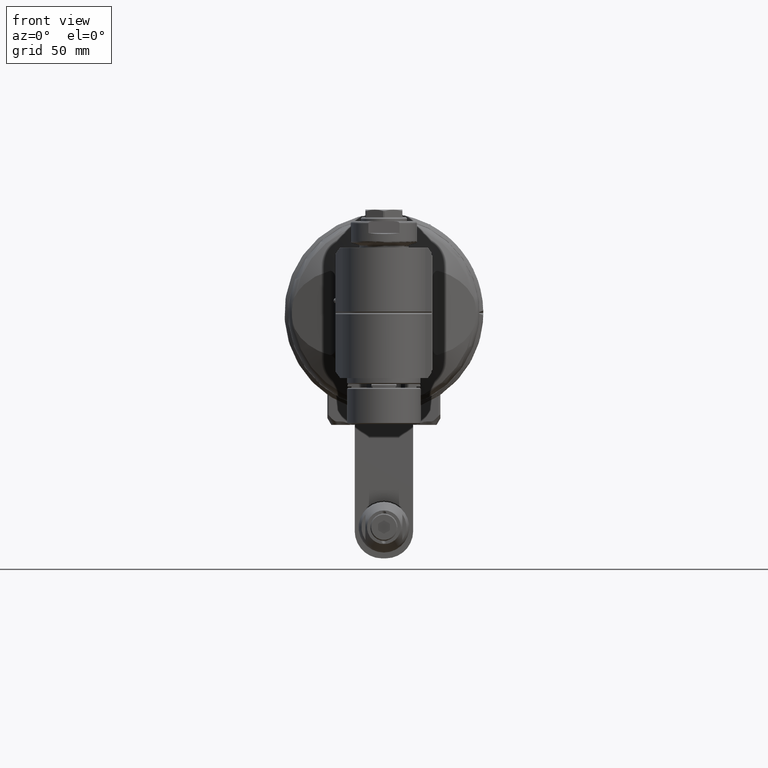
[diagram: clean part render]
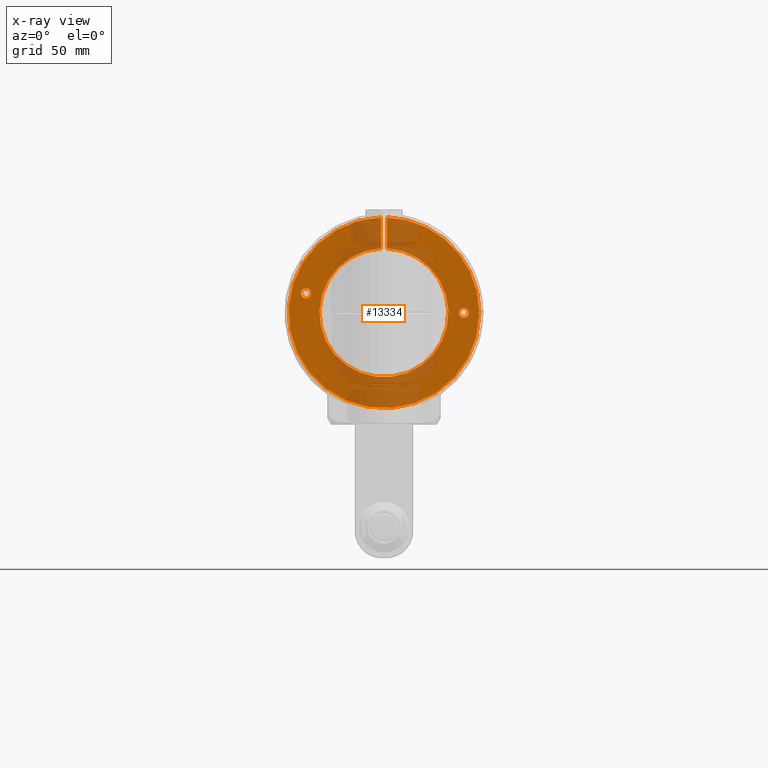
[diagram: x-ray — body ghosted, one internal face saturated and labeled with its STEP entity id]
A machine part, front view, then the same camera in x-ray: the body is ghosted and one INTERNAL B-rep face — a face not visible from any outside direction — is saturated and labeled: STEP entity #13334.
In plain terms, the highlighted planar face has unit normal (-0, -1, 0).
Its self-contained STEP definition (entity closure, byte-faithful):
#772=LINE('',#21927,#1664);
#775=LINE('',#21955,#1667);
#776=LINE('',#21960,#1668);
#777=LINE('',#21961,#1669);
#1664=VECTOR('',#16427,15.93371385814);
#1667=VECTOR('',#16442,15.93371385813);
#1668=VECTOR('',#16447,0.658925954023283);
#1669=VECTOR('',#16448,0.658925954023283);
#2641=FACE_BOUND('',#4078,.T.);
#2642=FACE_BOUND('',#4079,.T.);
#2804=PLANE('',#14387);
#3226=FACE_OUTER_BOUND('',#4077,.T.);
#4077=EDGE_LOOP('',(#9718,#9719,#9720,#9721,#9722,#9723,#9724));
#4078=EDGE_LOOP('',(#9725));
#4079=EDGE_LOOP('',(#9726));
#5071=CIRCLE('',#14388,49.);
#5072=CIRCLE('',#14389,33.07735026919);
#5073=CIRCLE('',#14390,49.);
#5074=CIRCLE('',#14391,2.5);
#5075=CIRCLE('',#14392,2.5);
#5951=VERTEX_POINT('',#21925);
#5952=VERTEX_POINT('',#21926);
#5958=VERTEX_POINT('',#21951);
#5959=VERTEX_POINT('',#21952);
#5960=VERTEX_POINT('',#21954);
#5961=VERTEX_POINT('',#21957);
#5962=VERTEX_POINT('',#21959);
#5963=VERTEX_POINT('',#21962);
#5964=VERTEX_POINT('',#21964);
#7393=EDGE_CURVE('',#5951,#5952,#772,.T.);
#7402=EDGE_CURVE('',#5958,#5959,#5071,.T.);
#7403=EDGE_CURVE('',#5959,#5960,#775,.T.);
#7404=EDGE_CURVE('',#5960,#5951,#5072,.T.);
#7405=EDGE_CURVE('',#5952,#5961,#5073,.T.);
#7406=EDGE_CURVE('',#5961,#5962,#776,.T.);
#7407=EDGE_CURVE('',#5962,#5958,#777,.T.);
#7408=EDGE_CURVE('',#5963,#5963,#5074,.T.);
#7409=EDGE_CURVE('',#5964,#5964,#5075,.T.);
#9718=ORIENTED_EDGE('',*,*,#7402,.T.);
#9719=ORIENTED_EDGE('',*,*,#7403,.T.);
#9720=ORIENTED_EDGE('',*,*,#7404,.T.);
#9721=ORIENTED_EDGE('',*,*,#7393,.T.);
#9722=ORIENTED_EDGE('',*,*,#7405,.T.);
#9723=ORIENTED_EDGE('',*,*,#7406,.T.);
#9724=ORIENTED_EDGE('',*,*,#7407,.T.);
#9725=ORIENTED_EDGE('',*,*,#7408,.T.);
#9726=ORIENTED_EDGE('',*,*,#7409,.T.);
#13334=ADVANCED_FACE('',(#3226,#2641,#2642),#2804,.T.);
#14387=AXIS2_PLACEMENT_3D('',#21950,#16438,#16439);
#14388=AXIS2_PLACEMENT_3D('',#21953,#16440,#16441);
#14389=AXIS2_PLACEMENT_3D('',#21956,#16443,#16444);
#14390=AXIS2_PLACEMENT_3D('',#21958,#16445,#16446);
#14391=AXIS2_PLACEMENT_3D('',#21963,#16449,#16450);
#14392=AXIS2_PLACEMENT_3D('',#21965,#16451,#16452);
#16427=DIRECTION('',(0.,0.,1.));
#16438=DIRECTION('center_axis',(0.,-1.,0.));
#16439=DIRECTION('ref_axis',(0.,0.,1.));
#16440=DIRECTION('center_axis',(0.,-1.,0.));
#16441=DIRECTION('ref_axis',(0.99996124901896,0.,0.00880343458216564));
#16442=DIRECTION('',(-5.896537023224E-13,0.,-1.));
#16443=DIRECTION('center_axis',(0.,1.,0.));
#16444=DIRECTION('ref_axis',(0.0453482515314194,0.,0.998971238866787));
#16445=DIRECTION('center_axis',(0.,-1.,0.));
#16446=DIRECTION('ref_axis',(-0.0306122448979601,0.,0.999531335407904));
#16447=DIRECTION('',(-0.75592894601842,0.,0.654653670708017));
#16448=DIRECTION('',(0.75592894601842,0.,0.654653670708017));
#16449=DIRECTION('center_axis',(0.,1.,0.));
#16450=DIRECTION('ref_axis',(-1.,0.,0.));
#16451=DIRECTION('center_axis',(0.,1.,0.));
#16452=DIRECTION('ref_axis',(-1.,0.,0.));
#21925=CARTESIAN_POINT('',(-1.5,1.657933050107E-14,33.04332157684));
#21926=CARTESIAN_POINT('',(-1.5,0.,48.97703543499));
#21927=CARTESIAN_POINT('',(-1.5,1.657933050107E-14,33.04332157684));
#21950=CARTESIAN_POINT('Origin',(0.,0.,49.13074005203));
#21951=CARTESIAN_POINT('',(48.99810120193,-1.42108547152E-14,0.4313682945261));
#21952=CARTESIAN_POINT('',(1.5,2.84217094304E-14,48.97703543499));
#21953=CARTESIAN_POINT('Origin',(0.,2.84217094304E-14,0.));
#21954=CARTESIAN_POINT('',(1.499999999991,0.,33.04332157686));
#21955=CARTESIAN_POINT('',(1.5,0.,48.97703543499));
#21956=CARTESIAN_POINT('Origin',(0.,-9.947598300641E-14,0.));
#21957=CARTESIAN_POINT('',(48.99810120193,0.,-0.4313682945262));
#21958=CARTESIAN_POINT('Origin',(0.,-4.263256414561E-14,0.));
#21959=CARTESIAN_POINT('',(48.5,-1.42108547152E-14,-1.845657092209E-14));
#21960=CARTESIAN_POINT('',(48.99810120193,0.,-0.4313682945262));
#21961=CARTESIAN_POINT('',(48.5,-1.42108547152E-14,-1.845657092209E-14));
#21962=CARTESIAN_POINT('',(-37.5,0.,10.));
#21963=CARTESIAN_POINT('Origin',(-40.,0.,10.));
#21964=CARTESIAN_POINT('',(43.5,0.,0.));
#21965=CARTESIAN_POINT('Origin',(41.,0.,0.));